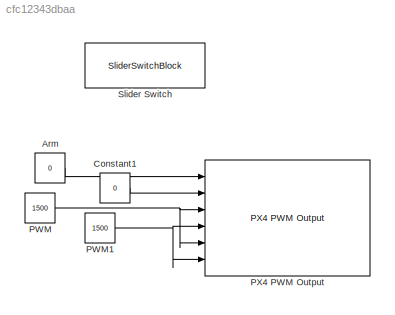
MODEL slx_cfc12343dbaa
KIND model
CONFIG AbsTol = auto
CONFIG EnableMultiTasking = on
CONFIG FixedStep = auto
CONFIG MaxStep = auto
CONFIG MinStep = auto
CONFIG RelTol = 1e-3
CONFIG SampleTimeConstraint = Unconstrained
CONFIG SolverName = FixedStepAuto
CONFIG StartTime = 0.0
CONFIG StopTime = inf
BLOCK [Constant] Arm
  OutDataTypeStr = boolean
  Value = 0
BLOCK [Constant] Constant1
  OutDataTypeStr = boolean
  Value = 0
BLOCK [Constant] PWM
  OutDataTypeStr = uint16
  Value = 1500
BLOCK [Constant] PWM1
  OutDataTypeStr = uint16
  Value = 1500
BLOCK [Reference] PX4 PWM Output  REF=px4lib/PX4 PWM Output
  Ports = [6]
  SourceBlock = px4lib/PX4 PWM Output
  SourceProductBaseCode = PX4AUTOPILOTS
  SourceType = PX4 PWM Output
BLOCK [SliderSwitchBlock] Slider Switch
LINE Arm:1 -> PX4 PWM Output:1
LINE Constant1:1 -> PX4 PWM Output:2
NET PWM1:1 -> PX4 PWM Output:4, PX4 PWM Output:6
NET PWM:1 -> PX4 PWM Output:3, PX4 PWM Output:5
note: NET lines group one-source signal fan-out (src -> all destinations, sorted); 1:1 wires keep LINE
